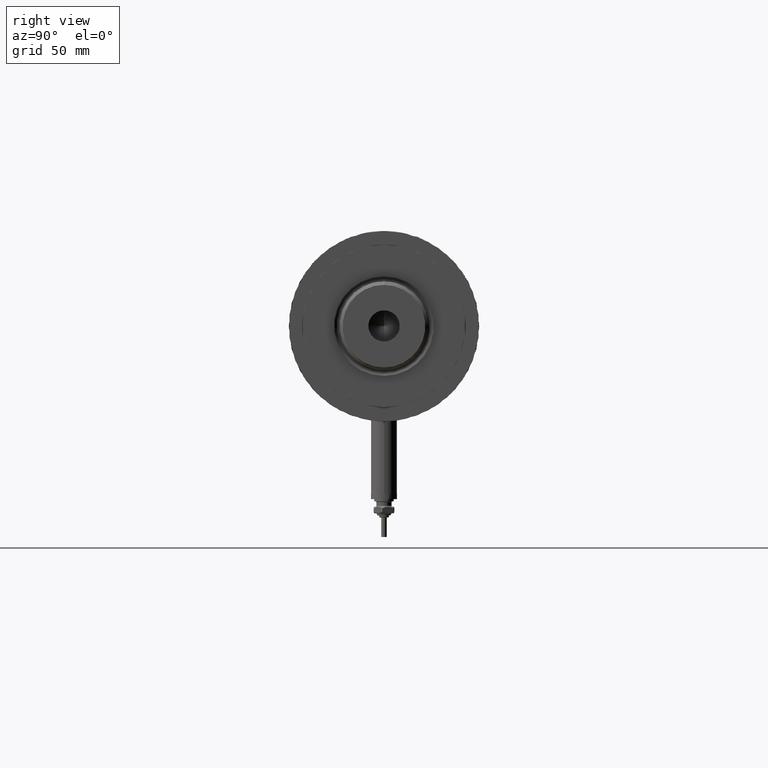
[diagram: clean part render]
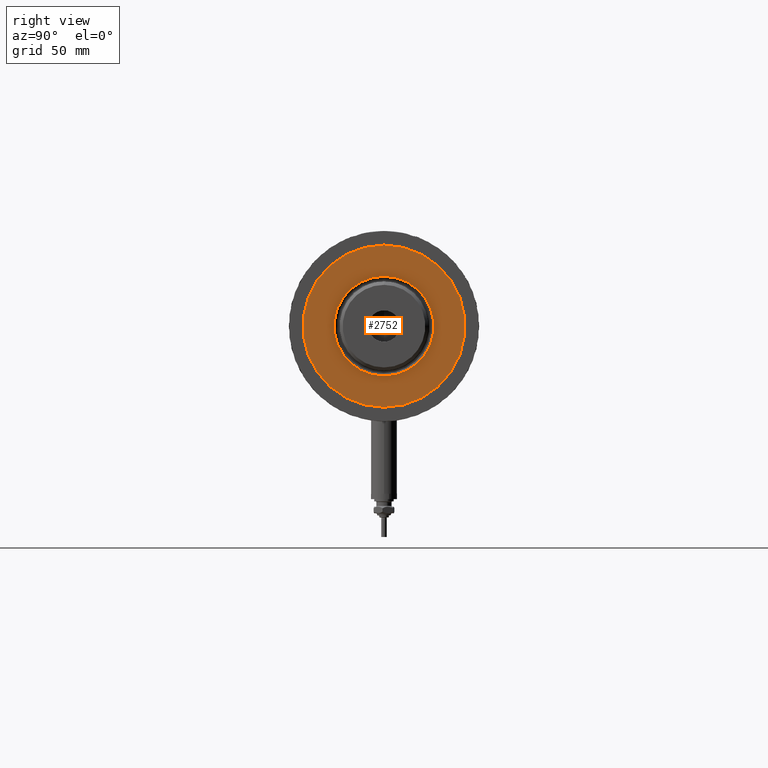
[diagram: same view with one face highlighted and labeled with its STEP entity id]
A machine part, right view. The second image highlights one B-rep face of the part: STEP entity #2752.
In plain terms, the highlighted planar face has unit normal (1, 0, -0).
Its self-contained STEP definition (entity closure, byte-faithful):
#341 = ORIENTED_EDGE ( 'NONE', *, *, #1675, .T. ) ;
#514 = VERTEX_POINT ( 'NONE', #1923 ) ;
#621 = EDGE_CURVE ( 'NONE', #4885, #2558, #5583, .T. ) ;
#648 = CARTESIAN_POINT ( 'NONE',  ( 0.000000000000000000, 0.000000000000000000, 59.89999999999999147 ) ) ;
#851 = AXIS2_PLACEMENT_3D ( 'NONE', #1783, #3642, #4480 ) ;
#1118 = DIRECTION ( 'NONE',  ( 1.000000000000000000, 0.000000000000000000, 0.000000000000000000 ) ) ;
#1129 = DIRECTION ( 'NONE',  ( 1.000000000000000000, 0.000000000000000000, 0.000000000000000000 ) ) ;
#1228 = DIRECTION ( 'NONE',  ( -0.000000000000000000, -0.000000000000000000, -1.000000000000000000 ) ) ;
#1260 = DIRECTION ( 'NONE',  ( 0.000000000000000000, 0.000000000000000000, 1.000000000000000000 ) ) ;
#1540 = CIRCLE ( 'NONE', #5904, 23.05000000000002913 ) ;
#1629 = EDGE_CURVE ( 'NONE', #514, #3624, #3668, .T. ) ;
#1637 = AXIS2_PLACEMENT_3D ( 'NONE', #5473, #1260, #4970 ) ;
#1675 = EDGE_CURVE ( 'NONE', #2558, #4885, #1540, .T. ) ;
#1783 = CARTESIAN_POINT ( 'NONE',  ( 0.000000000000000000, 0.000000000000000000, 59.89999999999999147 ) ) ;
#1845 = EDGE_CURVE ( 'NONE', #3624, #514, #5309, .T. ) ;
#1923 = CARTESIAN_POINT ( 'NONE',  ( -37.50000000000000711, 0.000000000000000000, 59.89999999999999147 ) ) ;
#2556 = DIRECTION ( 'NONE',  ( -0.000000000000000000, -0.000000000000000000, -1.000000000000000000 ) ) ;
#2558 = VERTEX_POINT ( 'NONE', #5769 ) ;
#2752 = ADVANCED_FACE ( 'NONE', ( #3565, #5415 ), #4088, .T. ) ;
#2820 = CARTESIAN_POINT ( 'NONE',  ( 0.000000000000000000, 0.000000000000000000, 59.89999999999999147 ) ) ;
#3239 = ORIENTED_EDGE ( 'NONE', *, *, #1845, .T. ) ;
#3242 = CARTESIAN_POINT ( 'NONE',  ( 37.50000000000000711, 4.592425496802575156E-15, 59.89999999999999147 ) ) ;
#3315 = ORIENTED_EDGE ( 'NONE', *, *, #1629, .T. ) ;
#3363 = EDGE_LOOP ( 'NONE', ( #341, #3799 ) ) ;
#3565 = FACE_BOUND ( 'NONE', #3363, .T. ) ;
#3624 = VERTEX_POINT ( 'NONE', #3242 ) ;
#3642 = DIRECTION ( 'NONE',  ( 0.000000000000000000, 0.000000000000000000, 1.000000000000000000 ) ) ;
#3668 = CIRCLE ( 'NONE', #4543, 37.50000000000000711 ) ;
#3799 = ORIENTED_EDGE ( 'NONE', *, *, #621, .T. ) ;
#3984 = DIRECTION ( 'NONE',  ( 1.000000000000000000, 0.000000000000000000, 0.000000000000000000 ) ) ;
#4088 = PLANE ( 'NONE',  #1637 ) ;
#4363 = DIRECTION ( 'NONE',  ( 0.000000000000000000, 0.000000000000000000, 1.000000000000000000 ) ) ;
#4446 = CARTESIAN_POINT ( 'NONE',  ( -23.05000000000002913, 2.822810872034651791E-15, 59.89999999999999147 ) ) ;
#4480 = DIRECTION ( 'NONE',  ( 1.000000000000000000, 0.000000000000000000, 0.000000000000000000 ) ) ;
#4533 = AXIS2_PLACEMENT_3D ( 'NONE', #2820, #1228, #1118 ) ;
#4543 = AXIS2_PLACEMENT_3D ( 'NONE', #5715, #4363, #3984 ) ;
#4600 = EDGE_LOOP ( 'NONE', ( #3315, #3239 ) ) ;
#4885 = VERTEX_POINT ( 'NONE', #4446 ) ;
#4970 = DIRECTION ( 'NONE',  ( 1.000000000000000000, 0.000000000000000000, -0.000000000000000000 ) ) ;
#5309 = CIRCLE ( 'NONE', #851, 37.50000000000000711 ) ;
#5415 = FACE_OUTER_BOUND ( 'NONE', #4600, .T. ) ;
#5473 = CARTESIAN_POINT ( 'NONE',  ( 0.000000000000000000, 0.000000000000000000, 59.89999999999999147 ) ) ;
#5583 = CIRCLE ( 'NONE', #4533, 23.05000000000002913 ) ;
#5715 = CARTESIAN_POINT ( 'NONE',  ( 0.000000000000000000, 0.000000000000000000, 59.89999999999999147 ) ) ;
#5769 = CARTESIAN_POINT ( 'NONE',  ( 23.05000000000002913, 0.000000000000000000, 59.89999999999999147 ) ) ;
#5904 = AXIS2_PLACEMENT_3D ( 'NONE', #648, #2556, #1129 ) ;